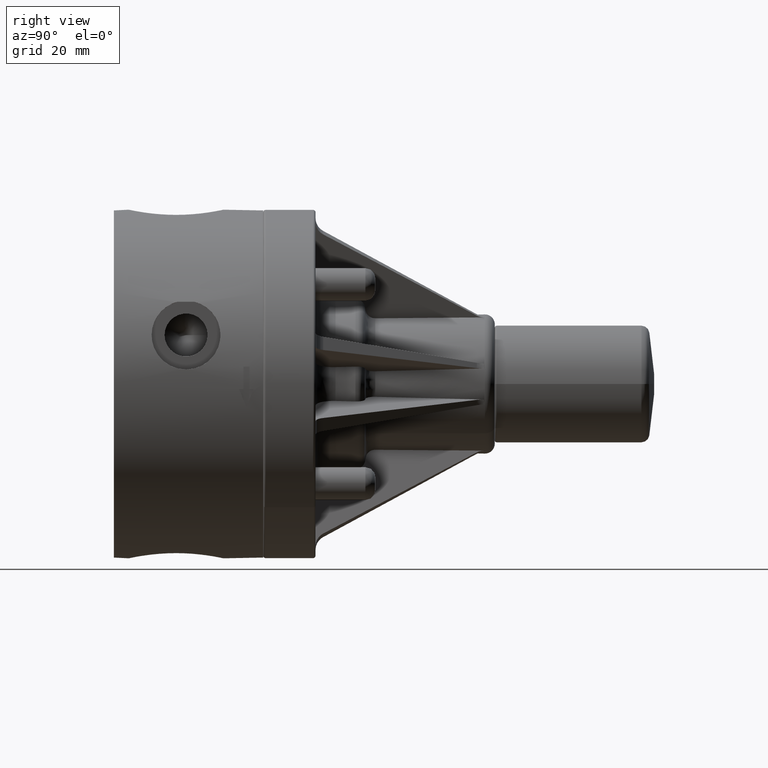
[diagram: clean part render]
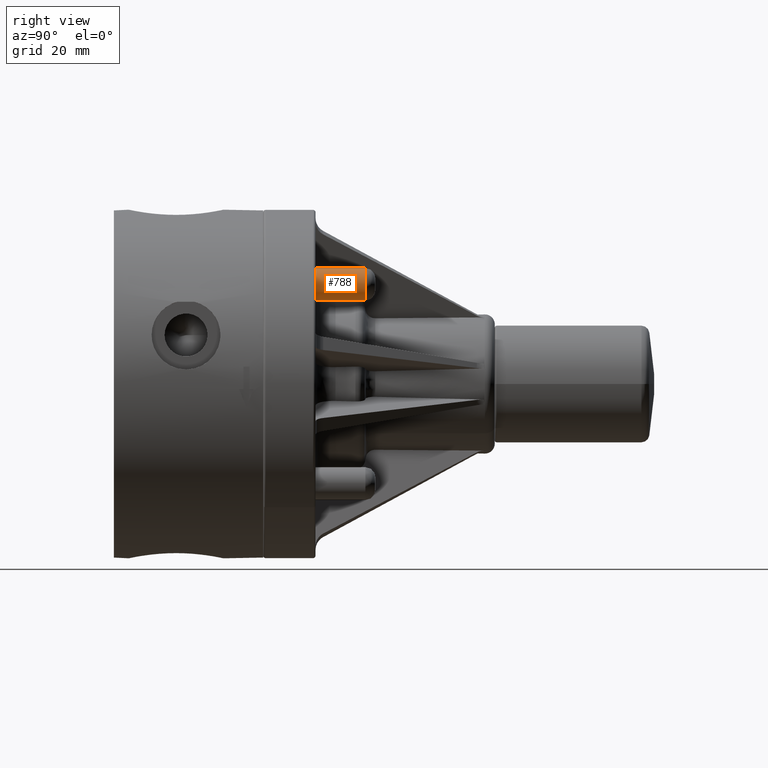
[diagram: same view with one face highlighted and labeled with its STEP entity id]
A machine part, right view. The second image highlights one B-rep face of the part: STEP entity #788.
In plain terms, the highlighted cylindrical surface (bore or boss wall) has radius 4.191 mm, axis along (-0, 1, 0).
Its self-contained STEP definition (entity closure, byte-faithful):
#746=CARTESIAN_POINT('',(0.834848988597778,2.525000000000000,0.999848988597779));
#747=VERTEX_POINT('',#746);
#748=CARTESIAN_POINT('',(0.999848988597778,2.525000000000000,0.999848988597779));
#749=DIRECTION('',(0.0,1.0,0.0));
#750=DIRECTION('',(1.0,0.0,0.0));
#751=AXIS2_PLACEMENT_3D('',#748,#749,#750);
#752=CIRCLE('',#751,0.165000000000000);
#753=EDGE_CURVE('',#747,#747,#752,.T.);
#769=CARTESIAN_POINT('',(0.999848988597778,2.325000000000001,0.999848988597779));
#770=DIRECTION('',(-8.756483E-017,1.0,8.326673E-017));
#771=DIRECTION('',(-1.0,0.0,0.0));
#772=AXIS2_PLACEMENT_3D('',#769,#770,#771);
#773=CYLINDRICAL_SURFACE('',#772,0.165000000000000);
#774=CARTESIAN_POINT('',(0.834848988597778,2.025000000000000,0.999848988597779));
#775=VERTEX_POINT('',#774);
#776=CARTESIAN_POINT('',(0.999848988597778,2.025000000000000,0.999848988597779));
#777=DIRECTION('',(0.0,-1.0,0.0));
#778=DIRECTION('',(-1.0,0.0,0.0));
#779=AXIS2_PLACEMENT_3D('',#776,#777,#778);
#780=CIRCLE('',#779,0.165000000000000);
#781=EDGE_CURVE('',#775,#775,#780,.T.);
#782=ORIENTED_EDGE('',*,*,#781,.F.);
#783=EDGE_LOOP('',(#782));
#784=FACE_OUTER_BOUND('',#783,.T.);
#785=ORIENTED_EDGE('',*,*,#753,.F.);
#786=EDGE_LOOP('',(#785));
#787=FACE_BOUND('',#786,.T.);
#788=ADVANCED_FACE('',(#784,#787),#773,.T.);